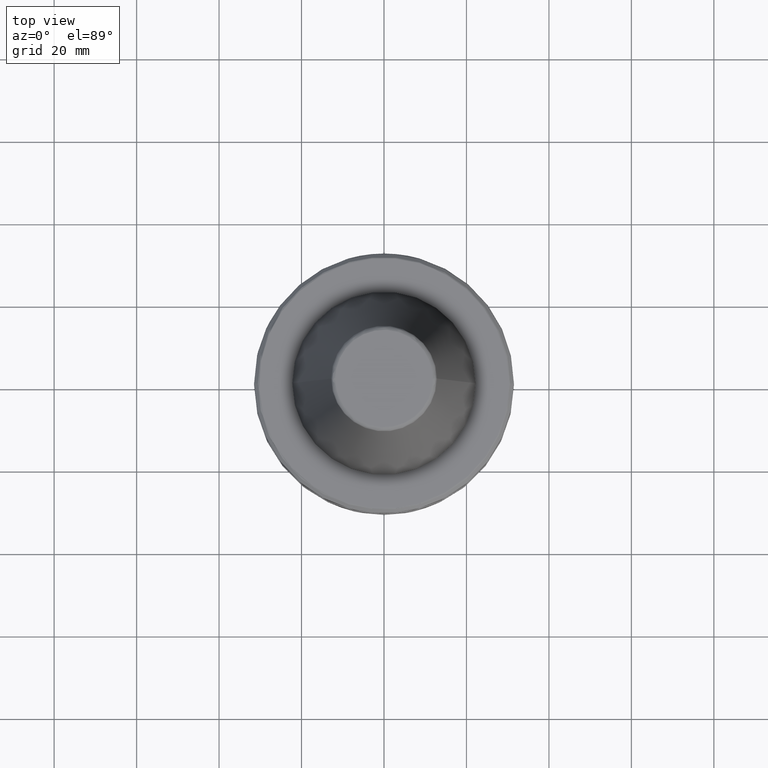
[diagram: clean part render]
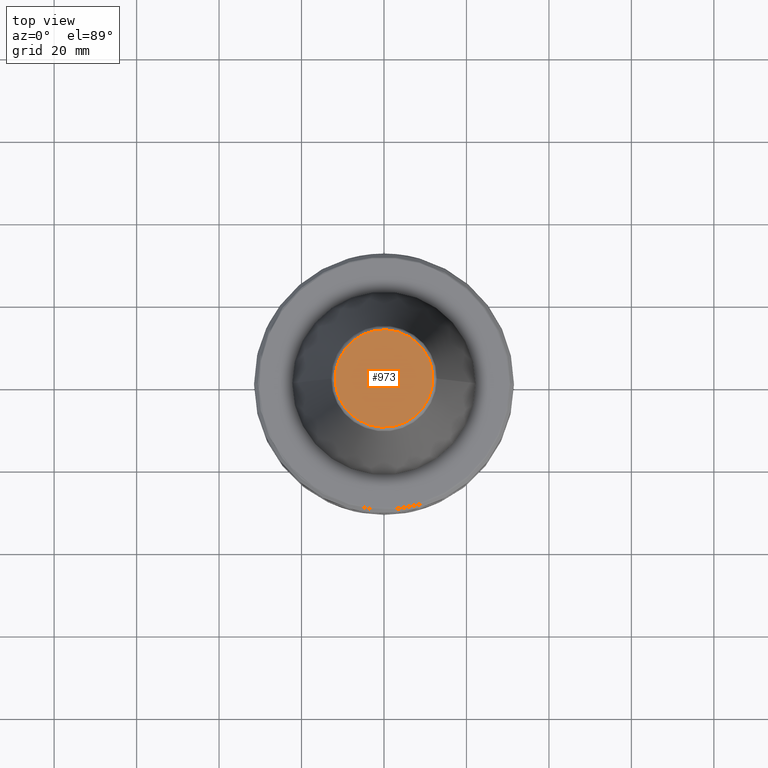
[diagram: same view with one face highlighted and labeled with its STEP entity id]
A machine part, top view. The second image highlights one B-rep face of the part: STEP entity #973.
In plain terms, the highlighted planar face has unit normal (0, 0, 1).
Its self-contained STEP definition (entity closure, byte-faithful):
#31 = DIRECTION ( 'NONE',  ( 1.000000000000000000, 0.0000000000000000000, 0.0000000000000000000 ) ) ;
#100 = VERTEX_POINT ( 'NONE', #1018 ) ;
#226 = ORIENTED_EDGE ( 'NONE', *, *, #1222, .F. ) ;
#762 = ORIENTED_EDGE ( 'NONE', *, *, #2031, .F. ) ;
#798 = CARTESIAN_POINT ( 'NONE',  ( -11.82266671809057200, 0.0000000000000000000, 45.95576247461377100 ) ) ;
#935 = CARTESIAN_POINT ( 'NONE',  ( -11.82266671809057200, 0.0000000000000000000, 45.95576247461375600 ) ) ;
#973 = ADVANCED_FACE ( 'NONE', ( #3470 ), #2795, .T. ) ;
#1018 = CARTESIAN_POINT ( 'NONE',  ( 11.82266671809057200, 0.0000000000000000000, 45.95576247461375600 ) ) ;
#1222 = EDGE_CURVE ( 'NONE', #3268, #100, #2037, .T. ) ;
#1287 = CARTESIAN_POINT ( 'NONE',  ( 11.82266671809057200, 0.0000000000000000000, 45.95576247461375600 ) ) ;
#1304 = CARTESIAN_POINT ( 'NONE',  ( -11.82266672047679300, 23.64533344110905600, 45.95576247449965000 ) ) ;
#1404 = CARTESIAN_POINT ( 'NONE',  ( -11.82266672047680200, -23.64533344110907000, 45.95576247449967200 ) ) ;
#1653 = CARTESIAN_POINT ( 'NONE',  ( 11.82266671809057200, 0.0000000000000000000, 45.95576247461377100 ) ) ;
#1934 = DIRECTION ( 'NONE',  ( 0.0000000000000000000, 0.0000000000000000000, 1.000000000000000000 ) ) ;
#1962 = CARTESIAN_POINT ( 'NONE',  ( 11.82266672047680200, -23.64533344110907000, 45.95576247449967200 ) ) ;
#2031 = EDGE_CURVE ( 'NONE', #100, #3268, #2851, .T. ) ;
#2037 =( BOUNDED_CURVE ( )  B_SPLINE_CURVE ( 3, ( #2110, #1304, #3186, #1287 ),
 .UNSPECIFIED., .F., .F. ) 
 B_SPLINE_CURVE_WITH_KNOTS ( ( 4, 4 ),
 ( 0.0000000000000000000, 1.000000000000000000 ),
 .UNSPECIFIED. ) 
 CURVE ( )  GEOMETRIC_REPRESENTATION_ITEM ( )  RATIONAL_B_SPLINE_CURVE ( ( 0.9606698257068202500, 0.3202232752356066700, 0.3202232752356066700, 0.9606698257068202500 ) ) 
 REPRESENTATION_ITEM ( '' )  );
#2110 = CARTESIAN_POINT ( 'NONE',  ( -11.82266671809057200, 0.0000000000000000000, 45.95576247461375600 ) ) ;
#2776 = EDGE_LOOP ( 'NONE', ( #226, #762 ) ) ;
#2795 = PLANE ( 'NONE',  #3087 ) ;
#2851 =( BOUNDED_CURVE ( )  B_SPLINE_CURVE ( 3, ( #1653, #1962, #1404, #798 ),
 .UNSPECIFIED., .F., .T. ) 
 B_SPLINE_CURVE_WITH_KNOTS ( ( 4, 4 ),
 ( 0.0000000000000000000, 1.000000000000000000 ),
 .UNSPECIFIED. ) 
 CURVE ( )  GEOMETRIC_REPRESENTATION_ITEM ( )  RATIONAL_B_SPLINE_CURVE ( ( 0.9606698257068199100, 0.3202232752356064000, 0.3202232752356064000, 0.9606698257068199100 ) ) 
 REPRESENTATION_ITEM ( '' )  );
#3087 = AXIS2_PLACEMENT_3D ( 'NONE', #3299, #1934, #31 ) ;
#3186 = CARTESIAN_POINT ( 'NONE',  ( 11.82266672047679300, 23.64533344110905600, 45.95576247449965000 ) ) ;
#3268 = VERTEX_POINT ( 'NONE', #935 ) ;
#3299 = CARTESIAN_POINT ( 'NONE',  ( -11.96453872100000200, -11.96453872100000200, 45.95576247478488300 ) ) ;
#3470 = FACE_OUTER_BOUND ( 'NONE', #2776, .T. ) ;